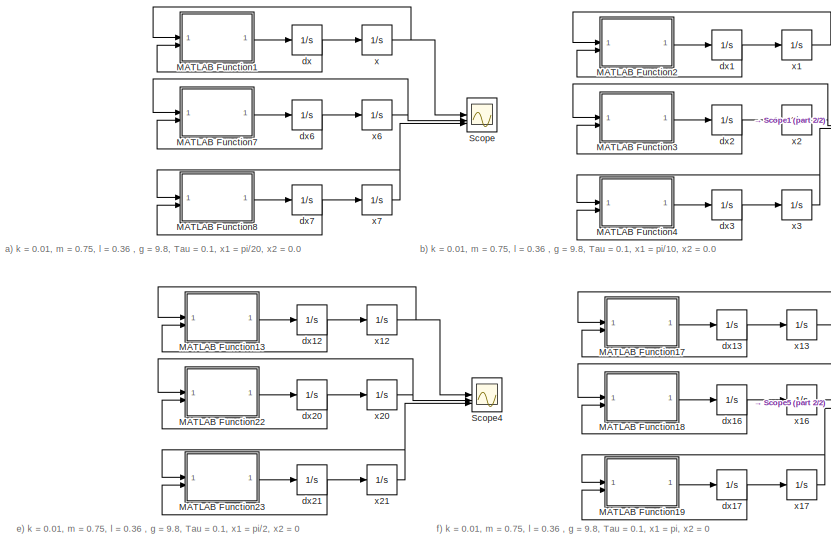
[diagram: root canvas - part 1/2, middle left region]
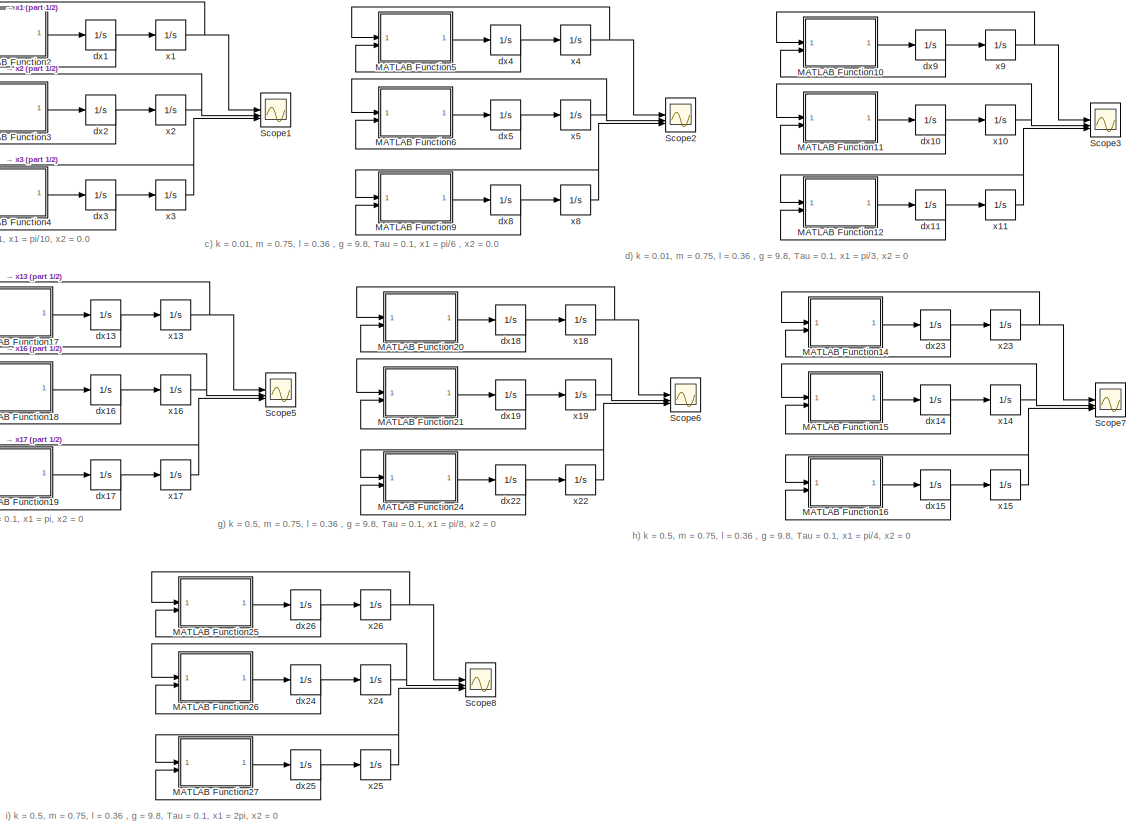
[diagram: root canvas - part 2/2, right side, full height]
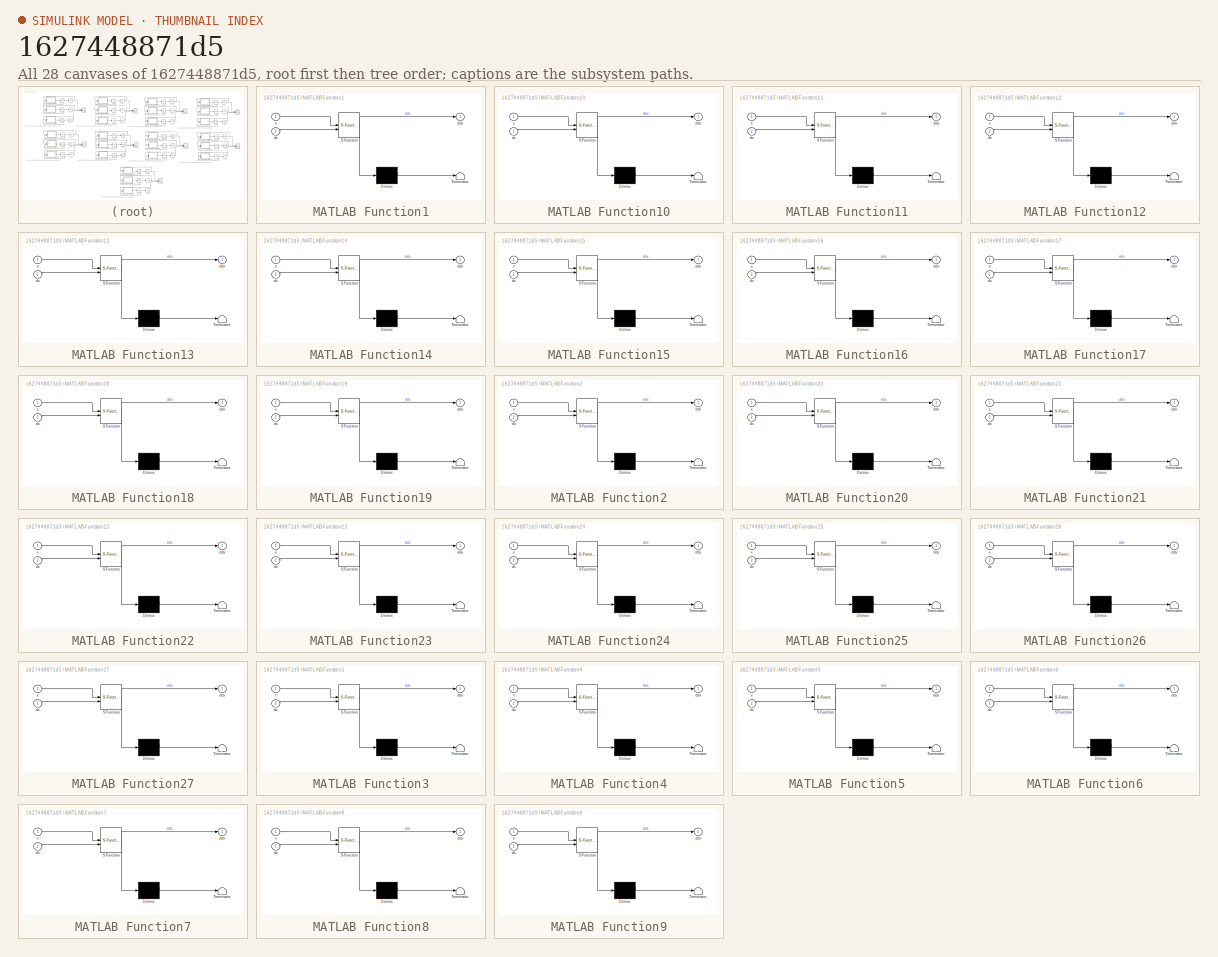
[diagram: thumbnail index - all 28 canvases of the model, root first then tree order]
MODEL slx_1627448871d5
KIND model
CONFIG AbsTol = auto
CONFIG EnableMultiTasking = off
CONFIG FixedStep = auto
CONFIG MaxStep = auto
CONFIG MinStep = auto
CONFIG RelTol = 1e-3
CONFIG SampleTimeConstraint = Unconstrained
CONFIG SolverName = VariableStepAuto
CONFIG StartTime = 0.0
CONFIG StopTime = 10
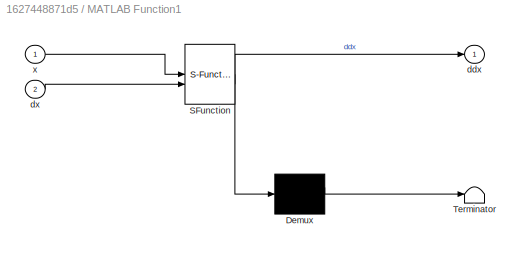
BLOCK [SubSystem] MATLAB Function1
  ErrorFcn = Stateflow.Translate.translate
  LibrarySourceBlock = simulink/User-Defined\nFunctions/MATLAB Function
  PermitHierarchicalResolution = ExplicitOnly
  SFBlockType = MATLAB Function
  TreatAsAtomicUnit = on
BLOCK [Demux] MATLAB Function1/ Demux 
  Outputs = 1
BLOCK [S-Function] MATLAB Function1/ SFunction 
  EnableBusSupport = on
  FunctionName = sf_sfun
  PortCounts = [2 2]
  SFcnIsStateOwnerBlock = off
  SFunctionDeploymentMode = off
  Tag = Stateflow S-Function 1
BLOCK [Terminator] MATLAB Function1/ Terminator 
BLOCK [Outport] MATLAB Function1/ddx
BLOCK [Inport] MATLAB Function1/dx
  Port = 2
BLOCK [Inport] MATLAB Function1/x
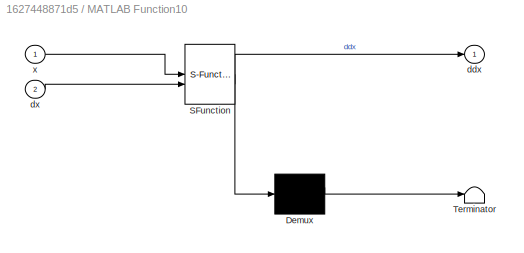
BLOCK [SubSystem] MATLAB Function10
  ErrorFcn = Stateflow.Translate.translate
  LibrarySourceBlock = simulink/User-Defined\nFunctions/MATLAB Function
  PermitHierarchicalResolution = ExplicitOnly
  SFBlockType = MATLAB Function
  TreatAsAtomicUnit = on
BLOCK [Demux] MATLAB Function10/ Demux 
  Outputs = 1
BLOCK [S-Function] MATLAB Function10/ SFunction 
  EnableBusSupport = on
  FunctionName = sf_sfun
  PortCounts = [2 2]
  SFcnIsStateOwnerBlock = off
  SFunctionDeploymentMode = off
  Tag = Stateflow S-Function 10
BLOCK [Terminator] MATLAB Function10/ Terminator 
BLOCK [Outport] MATLAB Function10/ddx
BLOCK [Inport] MATLAB Function10/dx
  Port = 2
BLOCK [Inport] MATLAB Function10/x
BLOCK [SubSystem] MATLAB Function11
  ErrorFcn = Stateflow.Translate.translate
  LibrarySourceBlock = simulink/User-Defined\nFunctions/MATLAB Function
  PermitHierarchicalResolution = ExplicitOnly
  SFBlockType = MATLAB Function
  TreatAsAtomicUnit = on
BLOCK [Demux] MATLAB Function11/ Demux 
  Outputs = 1
BLOCK [S-Function] MATLAB Function11/ SFunction 
  EnableBusSupport = on
  FunctionName = sf_sfun
  PortCounts = [2 2]
  SFcnIsStateOwnerBlock = off
  SFunctionDeploymentMode = off
  Tag = Stateflow S-Function 11
BLOCK [Terminator] MATLAB Function11/ Terminator 
BLOCK [Outport] MATLAB Function11/ddx
BLOCK [Inport] MATLAB Function11/dx
  Port = 2
BLOCK [Inport] MATLAB Function11/x
BLOCK [SubSystem] MATLAB Function12
  ErrorFcn = Stateflow.Translate.translate
  LibrarySourceBlock = simulink/User-Defined\nFunctions/MATLAB Function
  PermitHierarchicalResolution = ExplicitOnly
  SFBlockType = MATLAB Function
  TreatAsAtomicUnit = on
BLOCK [Demux] MATLAB Function12/ Demux 
  Outputs = 1
BLOCK [S-Function] MATLAB Function12/ SFunction 
  EnableBusSupport = on
  FunctionName = sf_sfun
  PortCounts = [2 2]
  SFcnIsStateOwnerBlock = off
  SFunctionDeploymentMode = off
  Tag = Stateflow S-Function 12
BLOCK [Terminator] MATLAB Function12/ Terminator 
BLOCK [Outport] MATLAB Function12/ddx
BLOCK [Inport] MATLAB Function12/dx
  Port = 2
BLOCK [Inport] MATLAB Function12/x
BLOCK [SubSystem] MATLAB Function13
  ErrorFcn = Stateflow.Translate.translate
  LibrarySourceBlock = simulink/User-Defined\nFunctions/MATLAB Function
  PermitHierarchicalResolution = ExplicitOnly
  SFBlockType = MATLAB Function
  TreatAsAtomicUnit = on
BLOCK [Demux] MATLAB Function13/ Demux 
  Outputs = 1
BLOCK [S-Function] MATLAB Function13/ SFunction 
  EnableBusSupport = on
  FunctionName = sf_sfun
  PortCounts = [2 2]
  SFcnIsStateOwnerBlock = off
  SFunctionDeploymentMode = off
  Tag = Stateflow S-Function 13
BLOCK [Terminator] MATLAB Function13/ Terminator 
BLOCK [Outport] MATLAB Function13/ddx
BLOCK [Inport] MATLAB Function13/dx
  Port = 2
BLOCK [Inport] MATLAB Function13/x
BLOCK [SubSystem] MATLAB Function14
  ErrorFcn = Stateflow.Translate.translate
  LibrarySourceBlock = simulink/User-Defined\nFunctions/MATLAB Function
  PermitHierarchicalResolution = ExplicitOnly
  SFBlockType = MATLAB Function
  TreatAsAtomicUnit = on
BLOCK [Demux] MATLAB Function14/ Demux 
  Outputs = 1
BLOCK [S-Function] MATLAB Function14/ SFunction 
  EnableBusSupport = on
  FunctionName = sf_sfun
  PortCounts = [2 2]
  SFcnIsStateOwnerBlock = off
  SFunctionDeploymentMode = off
  Tag = Stateflow S-Function 14
BLOCK [Terminator] MATLAB Function14/ Terminator 
BLOCK [Outport] MATLAB Function14/ddx
BLOCK [Inport] MATLAB Function14/dx
  Port = 2
BLOCK [Inport] MATLAB Function14/x
BLOCK [SubSystem] MATLAB Function15
  ErrorFcn = Stateflow.Translate.translate
  LibrarySourceBlock = simulink/User-Defined\nFunctions/MATLAB Function
  PermitHierarchicalResolution = ExplicitOnly
  SFBlockType = MATLAB Function
  TreatAsAtomicUnit = on
BLOCK [Demux] MATLAB Function15/ Demux 
  Outputs = 1
BLOCK [S-Function] MATLAB Function15/ SFunction 
  EnableBusSupport = on
  FunctionName = sf_sfun
  PortCounts = [2 2]
  SFcnIsStateOwnerBlock = off
  SFunctionDeploymentMode = off
  Tag = Stateflow S-Function 15
BLOCK [Terminator] MATLAB Function15/ Terminator 
BLOCK [Outport] MATLAB Function15/ddx
BLOCK [Inport] MATLAB Function15/dx
  Port = 2
BLOCK [Inport] MATLAB Function15/x
BLOCK [SubSystem] MATLAB Function16
  ErrorFcn = Stateflow.Translate.translate
  LibrarySourceBlock = simulink/User-Defined\nFunctions/MATLAB Function
  PermitHierarchicalResolution = ExplicitOnly
  SFBlockType = MATLAB Function
  TreatAsAtomicUnit = on
BLOCK [Demux] MATLAB Function16/ Demux 
  Outputs = 1
BLOCK [S-Function] MATLAB Function16/ SFunction 
  EnableBusSupport = on
  FunctionName = sf_sfun
  PortCounts = [2 2]
  SFcnIsStateOwnerBlock = off
  SFunctionDeploymentMode = off
  Tag = Stateflow S-Function 16
BLOCK [Terminator] MATLAB Function16/ Terminator 
BLOCK [Outport] MATLAB Function16/ddx
BLOCK [Inport] MATLAB Function16/dx
  Port = 2
BLOCK [Inport] MATLAB Function16/x
BLOCK [SubSystem] MATLAB Function17
  ErrorFcn = Stateflow.Translate.translate
  LibrarySourceBlock = simulink/User-Defined\nFunctions/MATLAB Function
  PermitHierarchicalResolution = ExplicitOnly
  SFBlockType = MATLAB Function
  TreatAsAtomicUnit = on
BLOCK [Demux] MATLAB Function17/ Demux 
  Outputs = 1
BLOCK [S-Function] MATLAB Function17/ SFunction 
  EnableBusSupport = on
  FunctionName = sf_sfun
  PortCounts = [2 2]
  SFcnIsStateOwnerBlock = off
  SFunctionDeploymentMode = off
  Tag = Stateflow S-Function 17
BLOCK [Terminator] MATLAB Function17/ Terminator 
BLOCK [Outport] MATLAB Function17/ddx
BLOCK [Inport] MATLAB Function17/dx
  Port = 2
BLOCK [Inport] MATLAB Function17/x
BLOCK [SubSystem] MATLAB Function18
  ErrorFcn = Stateflow.Translate.translate
  LibrarySourceBlock = simulink/User-Defined\nFunctions/MATLAB Function
  PermitHierarchicalResolution = ExplicitOnly
  SFBlockType = MATLAB Function
  TreatAsAtomicUnit = on
BLOCK [Demux] MATLAB Function18/ Demux 
  Outputs = 1
BLOCK [S-Function] MATLAB Function18/ SFunction 
  EnableBusSupport = on
  FunctionName = sf_sfun
  PortCounts = [2 2]
  SFcnIsStateOwnerBlock = off
  SFunctionDeploymentMode = off
  Tag = Stateflow S-Function 18
BLOCK [Terminator] MATLAB Function18/ Terminator 
BLOCK [Outport] MATLAB Function18/ddx
BLOCK [Inport] MATLAB Function18/dx
  Port = 2
BLOCK [Inport] MATLAB Function18/x
BLOCK [SubSystem] MATLAB Function19
  ErrorFcn = Stateflow.Translate.translate
  LibrarySourceBlock = simulink/User-Defined\nFunctions/MATLAB Function
  PermitHierarchicalResolution = ExplicitOnly
  SFBlockType = MATLAB Function
  TreatAsAtomicUnit = on
BLOCK [Demux] MATLAB Function19/ Demux 
  Outputs = 1
BLOCK [S-Function] MATLAB Function19/ SFunction 
  EnableBusSupport = on
  FunctionName = sf_sfun
  PortCounts = [2 2]
  SFcnIsStateOwnerBlock = off
  SFunctionDeploymentMode = off
  Tag = Stateflow S-Function 19
BLOCK [Terminator] MATLAB Function19/ Terminator 
BLOCK [Outport] MATLAB Function19/ddx
BLOCK [Inport] MATLAB Function19/dx
  Port = 2
BLOCK [Inport] MATLAB Function19/x
BLOCK [SubSystem] MATLAB Function2
  ErrorFcn = Stateflow.Translate.translate
  LibrarySourceBlock = simulink/User-Defined\nFunctions/MATLAB Function
  PermitHierarchicalResolution = ExplicitOnly
  SFBlockType = MATLAB Function
  TreatAsAtomicUnit = on
BLOCK [Demux] MATLAB Function2/ Demux 
  Outputs = 1
BLOCK [S-Function] MATLAB Function2/ SFunction 
  EnableBusSupport = on
  FunctionName = sf_sfun
  PortCounts = [2 2]
  SFcnIsStateOwnerBlock = off
  SFunctionDeploymentMode = off
  Tag = Stateflow S-Function 2
BLOCK [Terminator] MATLAB Function2/ Terminator 
BLOCK [Outport] MATLAB Function2/ddx
BLOCK [Inport] MATLAB Function2/dx
  Port = 2
BLOCK [Inport] MATLAB Function2/x
BLOCK [SubSystem] MATLAB Function20
  ErrorFcn = Stateflow.Translate.translate
  LibrarySourceBlock = simulink/User-Defined\nFunctions/MATLAB Function
  PermitHierarchicalResolution = ExplicitOnly
  SFBlockType = MATLAB Function
  TreatAsAtomicUnit = on
BLOCK [Demux] MATLAB Function20/ Demux 
  Outputs = 1
BLOCK [S-Function] MATLAB Function20/ SFunction 
  EnableBusSupport = on
  FunctionName = sf_sfun
  PortCounts = [2 2]
  SFcnIsStateOwnerBlock = off
  SFunctionDeploymentMode = off
  Tag = Stateflow S-Function 20
BLOCK [Terminator] MATLAB Function20/ Terminator 
BLOCK [Outport] MATLAB Function20/ddx
BLOCK [Inport] MATLAB Function20/dx
  Port = 2
BLOCK [Inport] MATLAB Function20/x
BLOCK [SubSystem] MATLAB Function21
  ErrorFcn = Stateflow.Translate.translate
  LibrarySourceBlock = simulink/User-Defined\nFunctions/MATLAB Function
  PermitHierarchicalResolution = ExplicitOnly
  SFBlockType = MATLAB Function
  TreatAsAtomicUnit = on
BLOCK [Demux] MATLAB Function21/ Demux 
  Outputs = 1
BLOCK [S-Function] MATLAB Function21/ SFunction 
  EnableBusSupport = on
  FunctionName = sf_sfun
  PortCounts = [2 2]
  SFcnIsStateOwnerBlock = off
  SFunctionDeploymentMode = off
  Tag = Stateflow S-Function 21
BLOCK [Terminator] MATLAB Function21/ Terminator 
BLOCK [Outport] MATLAB Function21/ddx
BLOCK [Inport] MATLAB Function21/dx
  Port = 2
BLOCK [Inport] MATLAB Function21/x
BLOCK [SubSystem] MATLAB Function22
  ErrorFcn = Stateflow.Translate.translate
  LibrarySourceBlock = simulink/User-Defined\nFunctions/MATLAB Function
  PermitHierarchicalResolution = ExplicitOnly
  SFBlockType = MATLAB Function
  TreatAsAtomicUnit = on
BLOCK [Demux] MATLAB Function22/ Demux 
  Outputs = 1
BLOCK [S-Function] MATLAB Function22/ SFunction 
  EnableBusSupport = on
  FunctionName = sf_sfun
  PortCounts = [2 2]
  SFcnIsStateOwnerBlock = off
  SFunctionDeploymentMode = off
  Tag = Stateflow S-Function 22
BLOCK [Terminator] MATLAB Function22/ Terminator 
BLOCK [Outport] MATLAB Function22/ddx
BLOCK [Inport] MATLAB Function22/dx
  Port = 2
BLOCK [Inport] MATLAB Function22/x
BLOCK [SubSystem] MATLAB Function23
  ErrorFcn = Stateflow.Translate.translate
  LibrarySourceBlock = simulink/User-Defined\nFunctions/MATLAB Function
  PermitHierarchicalResolution = ExplicitOnly
  SFBlockType = MATLAB Function
  TreatAsAtomicUnit = on
BLOCK [Demux] MATLAB Function23/ Demux 
  Outputs = 1
BLOCK [S-Function] MATLAB Function23/ SFunction 
  EnableBusSupport = on
  FunctionName = sf_sfun
  PortCounts = [2 2]
  SFcnIsStateOwnerBlock = off
  SFunctionDeploymentMode = off
  Tag = Stateflow S-Function 23
BLOCK [Terminator] MATLAB Function23/ Terminator 
BLOCK [Outport] MATLAB Function23/ddx
BLOCK [Inport] MATLAB Function23/dx
  Port = 2
BLOCK [Inport] MATLAB Function23/x
BLOCK [SubSystem] MATLAB Function24
  ErrorFcn = Stateflow.Translate.translate
  LibrarySourceBlock = simulink/User-Defined\nFunctions/MATLAB Function
  PermitHierarchicalResolution = ExplicitOnly
  SFBlockType = MATLAB Function
  TreatAsAtomicUnit = on
BLOCK [Demux] MATLAB Function24/ Demux 
  Outputs = 1
BLOCK [S-Function] MATLAB Function24/ SFunction 
  EnableBusSupport = on
  FunctionName = sf_sfun
  PortCounts = [2 2]
  SFcnIsStateOwnerBlock = off
  SFunctionDeploymentMode = off
  Tag = Stateflow S-Function 24
BLOCK [Terminator] MATLAB Function24/ Terminator 
BLOCK [Outport] MATLAB Function24/ddx
BLOCK [Inport] MATLAB Function24/dx
  Port = 2
BLOCK [Inport] MATLAB Function24/x
BLOCK [SubSystem] MATLAB Function25
  ErrorFcn = Stateflow.Translate.translate
  LibrarySourceBlock = simulink/User-Defined\nFunctions/MATLAB Function
  PermitHierarchicalResolution = ExplicitOnly
  SFBlockType = MATLAB Function
  TreatAsAtomicUnit = on
BLOCK [Demux] MATLAB Function25/ Demux 
  Outputs = 1
BLOCK [S-Function] MATLAB Function25/ SFunction 
  EnableBusSupport = on
  FunctionName = sf_sfun
  PortCounts = [2 2]
  SFcnIsStateOwnerBlock = off
  SFunctionDeploymentMode = off
  Tag = Stateflow S-Function 25
BLOCK [Terminator] MATLAB Function25/ Terminator 
BLOCK [Outport] MATLAB Function25/ddx
BLOCK [Inport] MATLAB Function25/dx
  Port = 2
BLOCK [Inport] MATLAB Function25/x
BLOCK [SubSystem] MATLAB Function26
  ErrorFcn = Stateflow.Translate.translate
  LibrarySourceBlock = simulink/User-Defined\nFunctions/MATLAB Function
  PermitHierarchicalResolution = ExplicitOnly
  SFBlockType = MATLAB Function
  TreatAsAtomicUnit = on
BLOCK [Demux] MATLAB Function26/ Demux 
  Outputs = 1
BLOCK [S-Function] MATLAB Function26/ SFunction 
  EnableBusSupport = on
  FunctionName = sf_sfun
  PortCounts = [2 2]
  SFcnIsStateOwnerBlock = off
  SFunctionDeploymentMode = off
  Tag = Stateflow S-Function 26
BLOCK [Terminator] MATLAB Function26/ Terminator 
BLOCK [Outport] MATLAB Function26/ddx
BLOCK [Inport] MATLAB Function26/dx
  Port = 2
BLOCK [Inport] MATLAB Function26/x
BLOCK [SubSystem] MATLAB Function27
  ErrorFcn = Stateflow.Translate.translate
  LibrarySourceBlock = simulink/User-Defined\nFunctions/MATLAB Function
  PermitHierarchicalResolution = ExplicitOnly
  SFBlockType = MATLAB Function
  TreatAsAtomicUnit = on
BLOCK [Demux] MATLAB Function27/ Demux 
  Outputs = 1
BLOCK [S-Function] MATLAB Function27/ SFunction 
  EnableBusSupport = on
  FunctionName = sf_sfun
  PortCounts = [2 2]
  SFcnIsStateOwnerBlock = off
  SFunctionDeploymentMode = off
  Tag = Stateflow S-Function 27
BLOCK [Terminator] MATLAB Function27/ Terminator 
BLOCK [Outport] MATLAB Function27/ddx
BLOCK [Inport] MATLAB Function27/dx
  Port = 2
BLOCK [Inport] MATLAB Function27/x
BLOCK [SubSystem] MATLAB Function3
  ErrorFcn = Stateflow.Translate.translate
  LibrarySourceBlock = simulink/User-Defined\nFunctions/MATLAB Function
  PermitHierarchicalResolution = ExplicitOnly
  SFBlockType = MATLAB Function
  TreatAsAtomicUnit = on
BLOCK [Demux] MATLAB Function3/ Demux 
  Outputs = 1
BLOCK [S-Function] MATLAB Function3/ SFunction 
  EnableBusSupport = on
  FunctionName = sf_sfun
  PortCounts = [2 2]
  SFcnIsStateOwnerBlock = off
  SFunctionDeploymentMode = off
  Tag = Stateflow S-Function 3
BLOCK [Terminator] MATLAB Function3/ Terminator 
BLOCK [Outport] MATLAB Function3/ddx
BLOCK [Inport] MATLAB Function3/dx
  Port = 2
BLOCK [Inport] MATLAB Function3/x
BLOCK [SubSystem] MATLAB Function4
  ErrorFcn = Stateflow.Translate.translate
  LibrarySourceBlock = simulink/User-Defined\nFunctions/MATLAB Function
  PermitHierarchicalResolution = ExplicitOnly
  SFBlockType = MATLAB Function
  TreatAsAtomicUnit = on
BLOCK [Demux] MATLAB Function4/ Demux 
  Outputs = 1
BLOCK [S-Function] MATLAB Function4/ SFunction 
  EnableBusSupport = on
  FunctionName = sf_sfun
  PortCounts = [2 2]
  SFcnIsStateOwnerBlock = off
  SFunctionDeploymentMode = off
  Tag = Stateflow S-Function 4
BLOCK [Terminator] MATLAB Function4/ Terminator 
BLOCK [Outport] MATLAB Function4/ddx
BLOCK [Inport] MATLAB Function4/dx
  Port = 2
BLOCK [Inport] MATLAB Function4/x
BLOCK [SubSystem] MATLAB Function5
  ErrorFcn = Stateflow.Translate.translate
  LibrarySourceBlock = simulink/User-Defined\nFunctions/MATLAB Function
  PermitHierarchicalResolution = ExplicitOnly
  SFBlockType = MATLAB Function
  TreatAsAtomicUnit = on
BLOCK [Demux] MATLAB Function5/ Demux 
  Outputs = 1
BLOCK [S-Function] MATLAB Function5/ SFunction 
  EnableBusSupport = on
  FunctionName = sf_sfun
  PortCounts = [2 2]
  SFcnIsStateOwnerBlock = off
  SFunctionDeploymentMode = off
  Tag = Stateflow S-Function 5
BLOCK [Terminator] MATLAB Function5/ Terminator 
BLOCK [Outport] MATLAB Function5/ddx
BLOCK [Inport] MATLAB Function5/dx
  Port = 2
BLOCK [Inport] MATLAB Function5/x
BLOCK [SubSystem] MATLAB Function6
  ErrorFcn = Stateflow.Translate.translate
  LibrarySourceBlock = simulink/User-Defined\nFunctions/MATLAB Function
  PermitHierarchicalResolution = ExplicitOnly
  SFBlockType = MATLAB Function
  TreatAsAtomicUnit = on
BLOCK [Demux] MATLAB Function6/ Demux 
  Outputs = 1
BLOCK [S-Function] MATLAB Function6/ SFunction 
  EnableBusSupport = on
  FunctionName = sf_sfun
  PortCounts = [2 2]
  SFcnIsStateOwnerBlock = off
  SFunctionDeploymentMode = off
  Tag = Stateflow S-Function 6
BLOCK [Terminator] MATLAB Function6/ Terminator 
BLOCK [Outport] MATLAB Function6/ddx
BLOCK [Inport] MATLAB Function6/dx
  Port = 2
BLOCK [Inport] MATLAB Function6/x
BLOCK [SubSystem] MATLAB Function7
  ErrorFcn = Stateflow.Translate.translate
  LibrarySourceBlock = simulink/User-Defined\nFunctions/MATLAB Function
  PermitHierarchicalResolution = ExplicitOnly
  SFBlockType = MATLAB Function
  TreatAsAtomicUnit = on
BLOCK [Demux] MATLAB Function7/ Demux 
  Outputs = 1
BLOCK [S-Function] MATLAB Function7/ SFunction 
  EnableBusSupport = on
  FunctionName = sf_sfun
  PortCounts = [2 2]
  SFcnIsStateOwnerBlock = off
  SFunctionDeploymentMode = off
  Tag = Stateflow S-Function 7
BLOCK [Terminator] MATLAB Function7/ Terminator 
BLOCK [Outport] MATLAB Function7/ddx
BLOCK [Inport] MATLAB Function7/dx
  Port = 2
BLOCK [Inport] MATLAB Function7/x
BLOCK [SubSystem] MATLAB Function8
  ErrorFcn = Stateflow.Translate.translate
  LibrarySourceBlock = simulink/User-Defined\nFunctions/MATLAB Function
  PermitHierarchicalResolution = ExplicitOnly
  SFBlockType = MATLAB Function
  TreatAsAtomicUnit = on
BLOCK [Demux] MATLAB Function8/ Demux 
  Outputs = 1
BLOCK [S-Function] MATLAB Function8/ SFunction 
  EnableBusSupport = on
  FunctionName = sf_sfun
  PortCounts = [2 2]
  SFcnIsStateOwnerBlock = off
  SFunctionDeploymentMode = off
  Tag = Stateflow S-Function 8
BLOCK [Terminator] MATLAB Function8/ Terminator 
BLOCK [Outport] MATLAB Function8/ddx
BLOCK [Inport] MATLAB Function8/dx
  Port = 2
BLOCK [Inport] MATLAB Function8/x
BLOCK [SubSystem] MATLAB Function9
  ErrorFcn = Stateflow.Translate.translate
  LibrarySourceBlock = simulink/User-Defined\nFunctions/MATLAB Function
  PermitHierarchicalResolution = ExplicitOnly
  SFBlockType = MATLAB Function
  TreatAsAtomicUnit = on
BLOCK [Demux] MATLAB Function9/ Demux 
  Outputs = 1
BLOCK [S-Function] MATLAB Function9/ SFunction 
  EnableBusSupport = on
  FunctionName = sf_sfun
  PortCounts = [2 2]
  SFcnIsStateOwnerBlock = off
  SFunctionDeploymentMode = off
  Tag = Stateflow S-Function 9
BLOCK [Terminator] MATLAB Function9/ Terminator 
BLOCK [Outport] MATLAB Function9/ddx
BLOCK [Inport] MATLAB Function9/dx
  Port = 2
BLOCK [Inport] MATLAB Function9/x
BLOCK [Scope] Scope
  Floating = off
  NumInputPorts = 3
  ScopeSpecificationString = Simulink.scopes.TimeScopeBlockCfg('CurrentConfiguration', extmgr.ConfigurationSet(extmgr.Configuration('Core','General UI',true),extmgr.Configuration('Core','Source UI',true),extmgr.Configuration('Sources','WiredSimulink',true,'DataLoggingVariableName','ScopeData1'),extmgr.Configuration('Visuals','Time Domain',true,'SerializedDisplays',{struct('MinYLimReal','-3.28404','MaxYLimReal','0.53943','YLab...<+1459ch>
BLOCK [Scope] Scope1
  Floating = off
  NumInputPorts = 3
  ScopeSpecificationString = Simulink.scopes.TimeScopeBlockCfg('CurrentConfiguration', extmgr.ConfigurationSet(extmgr.Configuration('Core','General UI',true),extmgr.Configuration('Core','Source UI',true),extmgr.Configuration('Sources','WiredSimulink',true),extmgr.Configuration('Visuals','Time Domain',true,'SerializedDisplays',{struct('MinYLimReal','-3.43228','MaxYLimReal','0.38136','YLabelReal','','MinYLimMag','0.00000','MaxY...<+1420ch>
BLOCK [Scope] Scope2
  Floating = off
  NumInputPorts = 3
  ScopeSpecificationString = Simulink.scopes.TimeScopeBlockCfg('CurrentConfiguration', extmgr.ConfigurationSet(extmgr.Configuration('Core','General UI',true),extmgr.Configuration('Core','Source UI',true),extmgr.Configuration('Sources','WiredSimulink',true,'DataLoggingVariableName','ScopeData2'),extmgr.Configuration('Visuals','Time Domain',true,'SerializedDisplays',{struct('MinYLimReal','-3.43228','MaxYLimReal','0.38136','YLab...<+1459ch>
BLOCK [Scope] Scope3
  Floating = off
  NumInputPorts = 3
  ScopeSpecificationString = Simulink.scopes.TimeScopeBlockCfg('CurrentConfiguration', extmgr.ConfigurationSet(extmgr.Configuration('Core','General UI',true),extmgr.Configuration('Core','Source UI',true),extmgr.Configuration('Sources','WiredSimulink',true,'DataLoggingVariableName','ScopeData3'),extmgr.Configuration('Visuals','Time Domain',true,'SerializedDisplays',{struct('MinYLimReal','-3.90422','MaxYLimReal','1.59735','YLab...<+1462ch>
BLOCK [Scope] Scope4
  Floating = off
  NumInputPorts = 3
  ScopeSpecificationString = Simulink.scopes.TimeScopeBlockCfg('CurrentConfiguration', extmgr.ConfigurationSet(extmgr.Configuration('Core','General UI',true),extmgr.Configuration('Core','Source UI',true),extmgr.Configuration('Sources','WiredSimulink',true,'DataLoggingVariableName','ScopeData4'),extmgr.Configuration('Visuals','Time Domain',true,'SerializedDisplays',{struct('MinYLimReal','-11.55816','MaxYLimReal','90.92139','YL...<+1469ch>
BLOCK [Scope] Scope5
  Floating = off
  NumInputPorts = 3
  ScopeSpecificationString = Simulink.scopes.TimeScopeBlockCfg('CurrentConfiguration', extmgr.ConfigurationSet(extmgr.Configuration('Core','General UI',true),extmgr.Configuration('Core','Source UI',true),extmgr.Configuration('Sources','WiredSimulink',true,'DataLoggingVariableName','ScopeData5'),extmgr.Configuration('Visuals','Time Domain',true,'SerializedDisplays',{struct('MinYLimReal','-13.39233','MaxYLimReal','92.87051','YL...<+1469ch>
BLOCK [Scope] Scope6
  Floating = off
  NumInputPorts = 3
  ScopeSpecificationString = Simulink.scopes.TimeScopeBlockCfg('CurrentConfiguration', extmgr.ConfigurationSet(extmgr.Configuration('Core','General UI',true),extmgr.Configuration('Core','Source UI',true),extmgr.Configuration('Sources','WiredSimulink',true,'DataLoggingVariableName','ScopeData6'),extmgr.Configuration('Visuals','Time Domain',true,'SerializedDisplays',{struct('MinYLimReal','-1.73112','MaxYLimReal','0.62868','YLab...<+1463ch>
BLOCK [Scope] Scope7
  Floating = off
  NumInputPorts = 3
  ScopeSpecificationString = Simulink.scopes.TimeScopeBlockCfg('CurrentConfiguration', extmgr.ConfigurationSet(extmgr.Configuration('Core','General UI',true),extmgr.Configuration('Core','Source UI',true),extmgr.Configuration('Sources','WiredSimulink',true,'DataLoggingVariableName','ScopeData7'),extmgr.Configuration('Visuals','Time Domain',true,'SerializedDisplays',{struct('MinYLimReal','-1.78021','MaxYLimReal','1.07047','YLab...<+1463ch>
BLOCK [Scope] Scope8
  Floating = off
  NumInputPorts = 3
  ScopeSpecificationString = Simulink.scopes.TimeScopeBlockCfg('CurrentConfiguration', extmgr.ConfigurationSet(extmgr.Configuration('Core','General UI',true),extmgr.Configuration('Core','Source UI',true),extmgr.Configuration('Sources','WiredSimulink',true,'DataLoggingVariableName','ScopeData8'),extmgr.Configuration('Visuals','Time Domain',true,'SerializedDisplays',{struct('MinYLimReal','-0.70982','MaxYLimReal','7.14425','YLab...<+1463ch>
BLOCK [Integrator] dx
  ContinuousStateAttributes = "dx"
BLOCK [Integrator] dx1
  ContinuousStateAttributes = "dx"
BLOCK [Integrator] dx10
  ContinuousStateAttributes = "dx"
BLOCK [Integrator] dx11
  ContinuousStateAttributes = "dx"
BLOCK [Integrator] dx12
  ContinuousStateAttributes = "dx"
BLOCK [Integrator] dx13
  ContinuousStateAttributes = "dx"
BLOCK [Integrator] dx14
  ContinuousStateAttributes = "dx"
BLOCK [Integrator] dx15
  ContinuousStateAttributes = "dx"
BLOCK [Integrator] dx16
  ContinuousStateAttributes = "dx"
BLOCK [Integrator] dx17
  ContinuousStateAttributes = "dx"
BLOCK [Integrator] dx18
  ContinuousStateAttributes = "dx"
BLOCK [Integrator] dx19
  ContinuousStateAttributes = "dx"
BLOCK [Integrator] dx2
  ContinuousStateAttributes = "dx"
BLOCK [Integrator] dx20
  ContinuousStateAttributes = "dx"
BLOCK [Integrator] dx21
  ContinuousStateAttributes = "dx"
BLOCK [Integrator] dx22
  ContinuousStateAttributes = "dx"
BLOCK [Integrator] dx23
  ContinuousStateAttributes = "dx"
BLOCK [Integrator] dx24
  ContinuousStateAttributes = "dx"
BLOCK [Integrator] dx25
  ContinuousStateAttributes = "dx"
BLOCK [Integrator] dx26
  ContinuousStateAttributes = "dx"
BLOCK [Integrator] dx3
  ContinuousStateAttributes = "dx"
BLOCK [Integrator] dx4
  ContinuousStateAttributes = "dx"
BLOCK [Integrator] dx5
  ContinuousStateAttributes = "dx"
BLOCK [Integrator] dx6
  ContinuousStateAttributes = "dx"
BLOCK [Integrator] dx7
  ContinuousStateAttributes = "dx"
BLOCK [Integrator] dx8
  ContinuousStateAttributes = "dx"
BLOCK [Integrator] dx9
  ContinuousStateAttributes = "dx"
BLOCK [Integrator] x
  InitialCondition = pi/20
BLOCK [Integrator] x1
  InitialCondition = pi/10
BLOCK [Integrator] x10
  InitialCondition = pi/3
BLOCK [Integrator] x11
  InitialCondition = pi/3
BLOCK [Integrator] x12
  InitialCondition = pi/2
BLOCK [Integrator] x13
  InitialCondition = pi
BLOCK [Integrator] x14
  InitialCondition = pi/4
BLOCK [Integrator] x15
  InitialCondition = pi/4
BLOCK [Integrator] x16
  InitialCondition = pi
BLOCK [Integrator] x17
  InitialCondition = pi
BLOCK [Integrator] x18
  InitialCondition = pi/8
BLOCK [Integrator] x19
  InitialCondition = pi/8
BLOCK [Integrator] x2
  InitialCondition = pi/10
BLOCK [Integrator] x20
  InitialCondition = pi/2
BLOCK [Integrator] x21
  InitialCondition = pi/2
BLOCK [Integrator] x22
  InitialCondition = pi/8
BLOCK [Integrator] x23
  InitialCondition = pi/4
BLOCK [Integrator] x24
  InitialCondition = 2*pi
BLOCK [Integrator] x25
  InitialCondition = 2*pi
BLOCK [Integrator] x26
  InitialCondition = 2*pi
BLOCK [Integrator] x3
  InitialCondition = pi/10
BLOCK [Integrator] x4
  InitialCondition = pi/6
BLOCK [Integrator] x5
  InitialCondition = pi/6
BLOCK [Integrator] x6
  InitialCondition = pi/20
BLOCK [Integrator] x7
  InitialCondition = pi/20
BLOCK [Integrator] x8
  InitialCondition = pi/6
BLOCK [Integrator] x9
  InitialCondition = pi/3
ANNOTATION (root): a) k = 0.01, m = 0.75, l = 0.36 , g = 9.8, Tau = 0.1, x1 = pi/20, x2 = 0.0
ANNOTATION (root): e) k = 0.01, m = 0.75, l = 0.36 , g = 9.8, Tau = 0.1, x1 = pi/2, x2 = 0
ANNOTATION (root): b) k = 0.01, m = 0.75, l = 0.36 , g = 9.8, Tau = 0.1, x1 = pi/10, x2 = 0.0
ANNOTATION (root): c) k = 0.01, m = 0.75, l = 0.36 , g = 9.8, Tau = 0.1, x1 = pi/6 , x2 = 0.0
ANNOTATION (root): d) k = 0.01, m = 0.75, l = 0.36 , g = 9.8, Tau = 0.1, x1 = pi/3, x2 = 0
ANNOTATION (root): f) k = 0.01, m = 0.75, l = 0.36 , g = 9.8, Tau = 0.1, x1 = pi, x2 = 0
ANNOTATION (root): g) k = 0.5, m = 0.75, l = 0.36 , g = 9.8, Tau = 0.1, x1 = pi/8, x2 = 0
ANNOTATION (root): h) k = 0.5, m = 0.75, l = 0.36 , g = 9.8, Tau = 0.1, x1 = pi/4, x2 = 0
ANNOTATION (root): i) k = 0.5, m = 0.75, l = 0.36 , g = 9.8, Tau = 0.1, x1 = 2pi, x2 = 0
LINE MATLAB Function10:1 -> dx9:1
LINE MATLAB Function11:1 -> dx10:1
LINE MATLAB Function12:1 -> dx11:1
LINE MATLAB Function13:1 -> dx12:1
LINE MATLAB Function14:1 -> dx23:1
LINE MATLAB Function15:1 -> dx14:1
LINE MATLAB Function16:1 -> dx15:1
LINE MATLAB Function17:1 -> dx13:1
LINE MATLAB Function18:1 -> dx16:1
LINE MATLAB Function19:1 -> dx17:1
LINE MATLAB Function1:1 -> dx:1
LINE MATLAB Function20:1 -> dx18:1
LINE MATLAB Function21:1 -> dx19:1
LINE MATLAB Function22:1 -> dx20:1
LINE MATLAB Function23:1 -> dx21:1
LINE MATLAB Function24:1 -> dx22:1
LINE MATLAB Function25:1 -> dx26:1
LINE MATLAB Function26:1 -> dx24:1
LINE MATLAB Function27:1 -> dx25:1
LINE MATLAB Function2:1 -> dx1:1
LINE MATLAB Function3:1 -> dx2:1
LINE MATLAB Function4:1 -> dx3:1
LINE MATLAB Function5:1 -> dx4:1
LINE MATLAB Function6:1 -> dx5:1
LINE MATLAB Function7:1 -> dx6:1
LINE MATLAB Function8:1 -> dx7:1
LINE MATLAB Function9:1 -> dx8:1
NET dx10:1 -> MATLAB Function11:2, x10:1
NET dx11:1 -> MATLAB Function12:2, x11:1
NET dx12:1 -> MATLAB Function13:2, x12:1
NET dx13:1 -> MATLAB Function17:2, x13:1
NET dx14:1 -> MATLAB Function15:2, x14:1
NET dx15:1 -> MATLAB Function16:2, x15:1
NET dx16:1 -> MATLAB Function18:2, x16:1
NET dx17:1 -> MATLAB Function19:2, x17:1
NET dx18:1 -> MATLAB Function20:2, x18:1
NET dx19:1 -> MATLAB Function21:2, x19:1
NET dx1:1 -> MATLAB Function2:2, x1:1
NET dx20:1 -> MATLAB Function22:2, x20:1
NET dx21:1 -> MATLAB Function23:2, x21:1
NET dx22:1 -> MATLAB Function24:2, x22:1
NET dx23:1 -> MATLAB Function14:2, x23:1
NET dx24:1 -> MATLAB Function26:2, x24:1
NET dx25:1 -> MATLAB Function27:2, x25:1
NET dx26:1 -> MATLAB Function25:2, x26:1
NET dx2:1 -> MATLAB Function3:2, x2:1
NET dx3:1 -> MATLAB Function4:2, x3:1
NET dx4:1 -> MATLAB Function5:2, x4:1
NET dx5:1 -> MATLAB Function6:2, x5:1
NET dx6:1 -> MATLAB Function7:2, x6:1
NET dx7:1 -> MATLAB Function8:2, x7:1
NET dx8:1 -> MATLAB Function9:2, x8:1
NET dx9:1 -> MATLAB Function10:2, x9:1
NET dx:1 -> MATLAB Function1:2, x:1
NET x10:1 -> MATLAB Function11:1, Scope3:2
NET x11:1 -> MATLAB Function12:1, Scope3:3
NET x12:1 -> MATLAB Function13:1, Scope4:1
NET x13:1 -> MATLAB Function17:1, Scope5:1
NET x14:1 -> MATLAB Function15:1, Scope7:2
NET x15:1 -> MATLAB Function16:1, Scope7:3
NET x16:1 -> MATLAB Function18:1, Scope5:2
NET x17:1 -> MATLAB Function19:1, Scope5:3
NET x18:1 -> MATLAB Function20:1, Scope6:1
NET x19:1 -> MATLAB Function21:1, Scope6:2
NET x1:1 -> MATLAB Function2:1, Scope1:1
NET x20:1 -> MATLAB Function22:1, Scope4:2
NET x21:1 -> MATLAB Function23:1, Scope4:3
NET x22:1 -> MATLAB Function24:1, Scope6:3
NET x23:1 -> MATLAB Function14:1, Scope7:1
NET x24:1 -> MATLAB Function26:1, Scope8:2
NET x25:1 -> MATLAB Function27:1, Scope8:3
NET x26:1 -> MATLAB Function25:1, Scope8:1
NET x2:1 -> MATLAB Function3:1, Scope1:2
NET x3:1 -> MATLAB Function4:1, Scope1:3
NET x4:1 -> MATLAB Function5:1, Scope2:1
NET x5:1 -> MATLAB Function6:1, Scope2:2
NET x6:1 -> MATLAB Function7:1, Scope:2
NET x7:1 -> MATLAB Function8:1, Scope:3
NET x8:1 -> MATLAB Function9:1, Scope2:3
NET x9:1 -> MATLAB Function10:1, Scope3:1
NET x:1 -> MATLAB Function1:1, Scope:1
note: NET lines group one-source signal fan-out (src -> all destinations, sorted); 1:1 wires keep LINE
CHART MATLAB Function13 states=1 transitions=1
  STATE_LABEL 'eML_blk_kernel()'
  STATE_LABEL 'SCRIPT:\nfunction ddx = fcn(x, dx)\n\nk=0.01;\nl=0.36;\ng=9.8;\na=l/2;\n\nm=0.75;\nJ=(4/3)*(m*a^2);\ntao=0.1;\n\nddx=(tao/J) - ((k*dx)/J) - ((m*g*a*x)/J);'
CHART MATLAB Function14 states=1 transitions=1
  STATE_LABEL 'eML_blk_kernel()'
  STATE_LABEL 'SCRIPT:\nfunction ddx = fcn(x, dx)\n\nk=0.5;\nl=0.36;\ng=9.8;\na=l/2;\n\nm=0.75;\nJ=(4/3)*(m*a^2);\ntao=0.1;\n\nddx=(tao/J) - ((k*dx)/J) - ((m*g*a*x)/J);'
CHART MATLAB Function15 states=1 transitions=1
  STATE_LABEL 'eML_blk_kernel()'
  STATE_LABEL 'SCRIPT:\nfunction ddx = fcn(x, dx)\n\nk=0.5;\nl=0.36;\ng=9.8;\na=l/2;\n\nm=0.75;\nJ=(4/3)*(m*a^2);\ntao=0.1;\n\nddx=(tao/J) - ((k*dx)/J) - ((m*g*a*sin(x))/J);'
CHART MATLAB Function16 states=1 transitions=1
  STATE_LABEL 'eML_blk_kernel()'
  STATE_LABEL 'SCRIPT:\nfunction ddx = fcn(x, dx)\n\nk=0.5;\nl=0.36;\ng=9.8;\na=l/2;\n\nm=0.75;\nJ=(4/3)*(m*a^2);\ntao=0.1;\n\nddx=(tao/J) - ((k*dx)/J) - ((m*g*a*cos(x))/J);'
CHART MATLAB Function17 states=1 transitions=1
  STATE_LABEL 'eML_blk_kernel()'
  STATE_LABEL 'SCRIPT:\nfunction ddx = fcn(x, dx)\n\nk=0.01;\nl=0.36;\ng=9.8;\na=l/2;\n\nm=0.75;\nJ=(4/3)*(m*a^2);\ntao=0.1;\n\nddx=(tao/J) - ((k*dx)/J) - ((m*g*a*x)/J);'
CHART MATLAB Function18 states=1 transitions=1
  STATE_LABEL 'eML_blk_kernel()'
  STATE_LABEL 'SCRIPT:\nfunction ddx = fcn(x, dx)\n\nk=0.01;\nl=0.36;\ng=9.8;\na=l/2;\n\nm=0.75;\nJ=(4/3)*(m*a^2);\ntao=0.1;\n\nddx=(tao/J) - ((k*dx)/J) - ((m*g*a*sin(x))/J);'
CHART MATLAB Function19 states=1 transitions=1
  STATE_LABEL 'eML_blk_kernel()'
  STATE_LABEL 'SCRIPT:\nfunction ddx = fcn(x, dx)\n\nk=0.01;\nl=0.36;\ng=9.8;\na=l/2;\n\nm=0.75;\nJ=(4/3)*(m*a^2);\ntao=0.1;\n\nddx=(tao/J) - ((k*dx)/J) - ((m*g*a*cos(x))/J);'
CHART MATLAB Function2 states=1 transitions=1
  STATE_LABEL 'eML_blk_kernel()'
  STATE_LABEL 'SCRIPT:\nfunction ddx = fcn(x, dx)\n\nk=0.01;\nl=0.36;\ng=9.8;\na=l/2;\n\nm=0.75;\nJ=(4/3)*(m*a^2);\ntao=0.1;\n\nddx=(tao/J) - ((k*dx)/J) - ((m*g*a*x)/J);'
CHART MATLAB Function20 states=1 transitions=1
  STATE_LABEL 'eML_blk_kernel()'
  STATE_LABEL 'SCRIPT:\nfunction ddx = fcn(x, dx)\n\nk=0.5;\nl=0.36;\ng=9.8;\na=l/2;\n\nm=0.75;\nJ=(4/3)*(m*a^2);\ntao=0.1;\n\nddx=(tao/J) - ((k*dx)/J) - ((m*g*a*x)/J);'
CHART MATLAB Function21 states=1 transitions=1
  STATE_LABEL 'eML_blk_kernel()'
  STATE_LABEL 'SCRIPT:\nfunction ddx = fcn(x, dx)\n\nk=0.5;\nl=0.36;\ng=9.8;\na=l/2;\n\nm=0.75;\nJ=(4/3)*(m*a^2);\ntao=0.1;\n\nddx=(tao/J) - ((k*dx)/J) - ((m*g*a*sin(x))/J);'
CHART MATLAB Function22 states=1 transitions=1
  STATE_LABEL 'eML_blk_kernel()'
  STATE_LABEL 'SCRIPT:\nfunction ddx = fcn(x, dx)\n\nk=0.01;\nl=0.36;\ng=9.8;\na=l/2;\n\nm=0.75;\nJ=(4/3)*(m*a^2);\ntao=0.1;\n\nddx=(tao/J) - ((k*dx)/J) - ((m*g*a*sin(x))/J);'
CHART MATLAB Function23 states=1 transitions=1
  STATE_LABEL 'eML_blk_kernel()'
  STATE_LABEL 'SCRIPT:\nfunction ddx = fcn(x, dx)\n\nk=0.01;\nl=0.36;\ng=9.8;\na=l/2;\n\nm=0.75;\nJ=(4/3)*(m*a^2);\ntao=0.1;\n\nddx=(tao/J) - ((k*dx)/J) - ((m*g*a*cos(x))/J);'
CHART MATLAB Function24 states=1 transitions=1
  STATE_LABEL 'eML_blk_kernel()'
  STATE_LABEL 'SCRIPT:\nfunction ddx = fcn(x, dx)\n\nk=0.5;\nl=0.36;\ng=9.8;\na=l/2;\n\nm=0.75;\nJ=(4/3)*(m*a^2);\ntao=0.1;\n\nddx=(tao/J) - ((k*dx)/J) - ((m*g*a*cos(x))/J);'
CHART MATLAB Function25 states=1 transitions=1
  STATE_LABEL 'eML_blk_kernel()'
  STATE_LABEL 'SCRIPT:\nfunction ddx = fcn(x, dx)\n\nk=0.5;\nl=0.36;\ng=9.8;\na=l/2;\n\nm=0.75;\nJ=(4/3)*(m*a^2);\ntao=0.1;\n\nddx=(tao/J) - ((k*dx)/J) - ((m*g*a*x)/J);'
CHART MATLAB Function26 states=1 transitions=1
  STATE_LABEL 'eML_blk_kernel()'
  STATE_LABEL 'SCRIPT:\nfunction ddx = fcn(x, dx)\n\nk=0.5;\nl=0.36;\ng=9.8;\na=l/2;\n\nm=0.75;\nJ=(4/3)*(m*a^2);\ntao=0.1;\n\nddx=(tao/J) - ((k*dx)/J) - ((m*g*a*sin(x))/J);'
CHART MATLAB Function27 states=1 transitions=1
  STATE_LABEL 'eML_blk_kernel()'
  STATE_LABEL 'SCRIPT:\nfunction ddx = fcn(x, dx)\n\nk=0.5;\nl=0.36;\ng=9.8;\na=l/2;\n\nm=0.75;\nJ=(4/3)*(m*a^2);\ntao=0.1;\n\nddx=(tao/J) - ((k*dx)/J) - ((m*g*a*cos(x))/J);'
CHART MATLAB Function3 states=1 transitions=1
  STATE_LABEL 'eML_blk_kernel()'
  STATE_LABEL 'SCRIPT:\nfunction ddx = fcn(x, dx)\n\nk=0.01;\nl=0.36;\ng=9.8;\na=l/2;\n\nm=0.75;\nJ=(4/3)*(m*a^2);\ntao=0.1;\n\nddx=(tao/J) - ((k*dx)/J) - ((m*g*a*sin(x))/J);'
CHART MATLAB Function4 states=1 transitions=1
  STATE_LABEL 'eML_blk_kernel()'
  STATE_LABEL 'SCRIPT:\nfunction ddx = fcn(x, dx)\n\nk=0.01;\nl=0.36;\ng=9.8;\na=l/2;\n\nm=0.75;\nJ=(4/3)*(m*a^2);\ntao=0.1;\n\nddx=(tao/J) - ((k*dx)/J) - ((m*g*a*cos(x))/J);'
CHART MATLAB Function5 states=1 transitions=1
  STATE_LABEL 'eML_blk_kernel()'
  STATE_LABEL 'SCRIPT:\nfunction ddx = fcn(x, dx)\n\nk=0.01;\nl=0.36;\ng=9.8;\na=l/2;\n\nm=0.75;\nJ=(4/3)*(m*a^2);\ntao=0.1;\n\nddx=(tao/J) - ((k*dx)/J) - ((m*g*a*x)/J);'
CHART MATLAB Function6 states=1 transitions=1
  STATE_LABEL 'eML_blk_kernel()'
  STATE_LABEL 'SCRIPT:\nfunction ddx = fcn(x, dx)\n\nk=0.01;\nl=0.36;\ng=9.8;\na=l/2;\n\nm=0.75;\nJ=(4/3)*(m*a^2);\ntao=0.1;\n\nddx=(tao/J) - ((k*dx)/J) - ((m*g*a*sin(x))/J);'
CHART MATLAB Function7 states=1 transitions=1
  STATE_LABEL 'eML_blk_kernel()'
  STATE_LABEL 'SCRIPT:\nfunction ddx = fcn(x, dx)\n\nk=0.01;\nl=0.36;\ng=9.8;\na=l/2;\n\nm=0.75;\nJ=(4/3)*(m*a^2);\ntao=0.1;\n\nddx=(tao/J) - ((k*dx)/J) - ((m*g*a*sin(x))/J);'
CHART MATLAB Function8 states=1 transitions=1
  STATE_LABEL 'eML_blk_kernel()'
  STATE_LABEL 'SCRIPT:\nfunction ddx = fcn(x, dx)\n\nk=0.01;\nl=0.36;\ng=9.8;\na=l/2;\n\nm=0.75;\nJ=(4/3)*(m*a^2);\ntao=0.1;\n\nddx=(tao/J) - ((k*dx)/J) - ((m*g*a*cos(x))/J);'
CHART MATLAB Function9 states=1 transitions=1
  STATE_LABEL 'eML_blk_kernel()'
  STATE_LABEL 'SCRIPT:\nfunction ddx = fcn(x, dx)\n\nk=0.01;\nl=0.36;\ng=9.8;\na=l/2;\n\nm=0.75;\nJ=(4/3)*(m*a^2);\ntao=0.1;\n\nddx=(tao/J) - ((k*dx)/J) - ((m*g*a*cos(x))/J);'
CHART MATLAB Function1 states=1 transitions=1
  STATE_LABEL 'eML_blk_kernel()'
  STATE_LABEL 'SCRIPT:\nfunction ddx = fcn(x, dx)\n\nk=0.01;\nl=0.36;\ng=9.8;\na=l/2;\n\nm=0.75;\nJ=(4/3)*(m*a^2);\ntao=0.1;\n\nddx=(tao/J) - ((k*dx)/J) - ((m*g*a*x)/J);'
CHART MATLAB Function10 states=1 transitions=1
  STATE_LABEL 'eML_blk_kernel()'
  STATE_LABEL 'SCRIPT:\nfunction ddx = fcn(x, dx)\n\nk=0.01;\nl=0.36;\ng=9.8;\na=l/2;\n\nm=0.75;\nJ=(4/3)*(m*a^2);\ntao=0.1;\n\nddx=(tao/J) - ((k*dx)/J) - ((m*g*a*x)/J);'
CHART MATLAB Function11 states=1 transitions=1
  STATE_LABEL 'eML_blk_kernel()'
  STATE_LABEL 'SCRIPT:\nfunction ddx = fcn(x, dx)\n\nk=0.01;\nl=0.36;\ng=9.8;\na=l/2;\n\nm=0.75;\nJ=(4/3)*(m*a^2);\ntao=0.1;\n\nddx=(tao/J) - ((k*dx)/J) - ((m*g*a*sin(x))/J);'
CHART MATLAB Function12 states=1 transitions=1
  STATE_LABEL 'eML_blk_kernel()'
  STATE_LABEL 'SCRIPT:\nfunction ddx = fcn(x, dx)\n\nk=0.01;\nl=0.36;\ng=9.8;\na=l/2;\n\nm=0.75;\nJ=(4/3)*(m*a^2);\ntao=0.1;\n\nddx=(tao/J) - ((k*dx)/J) - ((m*g*a*cos(x))/J);'
CHART  states=0 transitions=0
CHART  states=0 transitions=0
CHART  states=0 transitions=0
CHART  states=0 transitions=0
CHART  states=0 transitions=0
CHART  states=0 transitions=0
CHART  states=0 transitions=0
CHART  states=0 transitions=0
CHART  states=0 transitions=0
CHART  states=0 transitions=0
CHART  states=0 transitions=0
CHART  states=0 transitions=0
CHART  states=0 transitions=0
CHART  states=0 transitions=0
CHART  states=0 transitions=0
CHART  states=0 transitions=0
CHART  states=0 transitions=0
CHART  states=0 transitions=0
CHART  states=0 transitions=0
CHART  states=0 transitions=0
CHART  states=0 transitions=0
CHART  states=0 transitions=0
CHART  states=0 transitions=0
CHART  states=0 transitions=0
CHART  states=0 transitions=0
CHART  states=0 transitions=0
CHART  states=0 transitions=0
